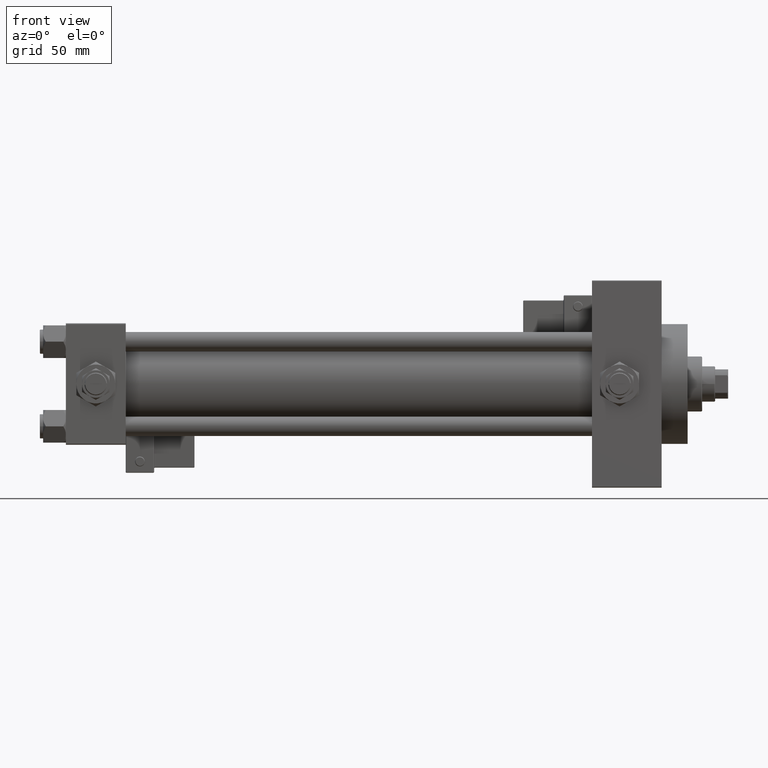
[diagram: clean part render]
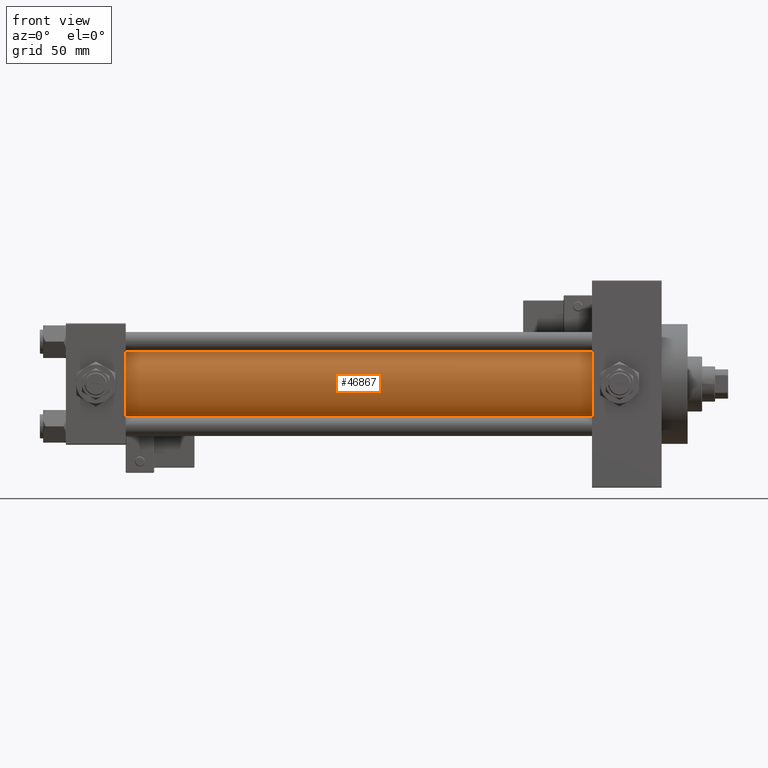
[diagram: same view with one face highlighted and labeled with its STEP entity id]
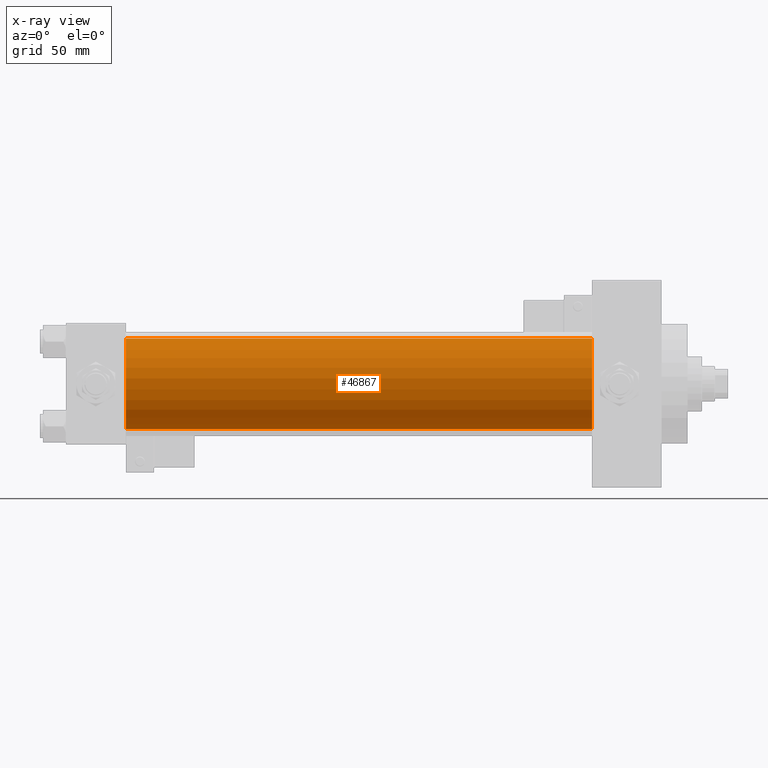
[diagram: x-ray of the same camera — body ghosted, the highlighted face saturated]
A machine part, front view. The second image highlights one B-rep face of the part: STEP entity #46867.
The next image is the same camera in x-ray: the body ghosted, the highlighted face saturated — about 0% of this face is hidden behind the body in this view.
In plain terms, the highlighted cylindrical surface (partial cylindrical patch) has radius 28 mm, axis along (-1, -0, -0).
Its self-contained STEP definition (entity closure, byte-faithful):
#4318 = CARTESIAN_POINT ( 'NONE',  ( 324.9999999999999432, -2.602085213965210642E-15, 28.00000000000000000 ) ) ;
#4765 = FACE_OUTER_BOUND ( 'NONE', #32050, .T. ) ;
#8175 = EDGE_CURVE ( 'NONE', #18797, #38965, #40001, .T. ) ;
#9466 = EDGE_CURVE ( 'NONE', #18874, #45984, #35530, .T. ) ;
#11224 = VECTOR ( 'NONE', #20157, 1000.000000000000000 ) ;
#12055 = DIRECTION ( 'NONE',  ( 0.000000000000000000, 0.000000000000000000, 1.000000000000000000 ) ) ;
#13919 = CIRCLE ( 'NONE', #18088, 28.00000000000000000 ) ;
#18043 = ORIENTED_EDGE ( 'NONE', *, *, #19030, .T. ) ;
#18088 = AXIS2_PLACEMENT_3D ( 'NONE', #47701, #48725, #12055 ) ;
#18404 = DIRECTION ( 'NONE',  ( 1.000000000000000000, 0.000000000000000000, 0.000000000000000000 ) ) ;
#18607 = EDGE_CURVE ( 'NONE', #18797, #18874, #24726, .T. ) ;
#18797 = VERTEX_POINT ( 'NONE', #48022 ) ;
#18874 = VERTEX_POINT ( 'NONE', #30050 ) ;
#19030 = EDGE_CURVE ( 'NONE', #38965, #45984, #13919, .T. ) ;
#20157 = DIRECTION ( 'NONE',  ( -1.000000000000000000, -0.000000000000000000, -0.000000000000000000 ) ) ;
#24726 = CIRCLE ( 'NONE', #25540, 28.00000000000000000 ) ;
#25540 = AXIS2_PLACEMENT_3D ( 'NONE', #37915, #18404, #50127 ) ;
#26438 = ORIENTED_EDGE ( 'NONE', *, *, #9466, .F. ) ;
#27255 = DIRECTION ( 'NONE',  ( -1.000000000000000000, -0.000000000000000000, -0.000000000000000000 ) ) ;
#30050 = CARTESIAN_POINT ( 'NONE',  ( 324.9999999999999432, 8.269258236473784371E-16, -28.00000000000000000 ) ) ;
#32050 = EDGE_LOOP ( 'NONE', ( #26438, #47830, #42671, #18043 ) ) ;
#32713 = AXIS2_PLACEMENT_3D ( 'NONE', #50676, #27255, #43397 ) ;
#32834 = CARTESIAN_POINT ( 'NONE',  ( 36.99999999999997868, -2.602085213965210642E-15, 28.00000000000000000 ) ) ;
#34806 = DIRECTION ( 'NONE',  ( -1.000000000000000000, -0.000000000000000000, -0.000000000000000000 ) ) ;
#35530 = LINE ( 'NONE', #51139, #11224 ) ;
#37915 = CARTESIAN_POINT ( 'NONE',  ( 324.9999999999999432, -2.602085213965210642E-15, 0.000000000000000000 ) ) ;
#38965 = VERTEX_POINT ( 'NONE', #32834 ) ;
#39496 = CYLINDRICAL_SURFACE ( 'NONE', #32713, 28.00000000000000000 ) ;
#40001 = LINE ( 'NONE', #4318, #42734 ) ;
#42671 = ORIENTED_EDGE ( 'NONE', *, *, #8175, .T. ) ;
#42734 = VECTOR ( 'NONE', #34806, 1000.000000000000000 ) ;
#43397 = DIRECTION ( 'NONE',  ( 0.000000000000000000, 0.000000000000000000, 1.000000000000000000 ) ) ;
#45887 = CARTESIAN_POINT ( 'NONE',  ( 36.99999999999997868, 8.269258236473784371E-16, -28.00000000000000000 ) ) ;
#45984 = VERTEX_POINT ( 'NONE', #45887 ) ;
#46867 = ADVANCED_FACE ( 'NONE', ( #4765 ), #39496, .T. ) ;
#47701 = CARTESIAN_POINT ( 'NONE',  ( 36.99999999999997868, -2.602085213965210642E-15, 0.000000000000000000 ) ) ;
#47830 = ORIENTED_EDGE ( 'NONE', *, *, #18607, .F. ) ;
#48022 = CARTESIAN_POINT ( 'NONE',  ( 324.9999999999999432, -2.602085213965210642E-15, 28.00000000000000000 ) ) ;
#48725 = DIRECTION ( 'NONE',  ( 1.000000000000000000, -0.000000000000000000, 0.000000000000000000 ) ) ;
#50127 = DIRECTION ( 'NONE',  ( 0.000000000000000000, 0.000000000000000000, -1.000000000000000000 ) ) ;
#50676 = CARTESIAN_POINT ( 'NONE',  ( 324.9999999999999432, -2.602085213965210642E-15, 0.000000000000000000 ) ) ;
#51139 = CARTESIAN_POINT ( 'NONE',  ( 324.9999999999999432, 8.269258236473784371E-16, -28.00000000000000000 ) ) ;